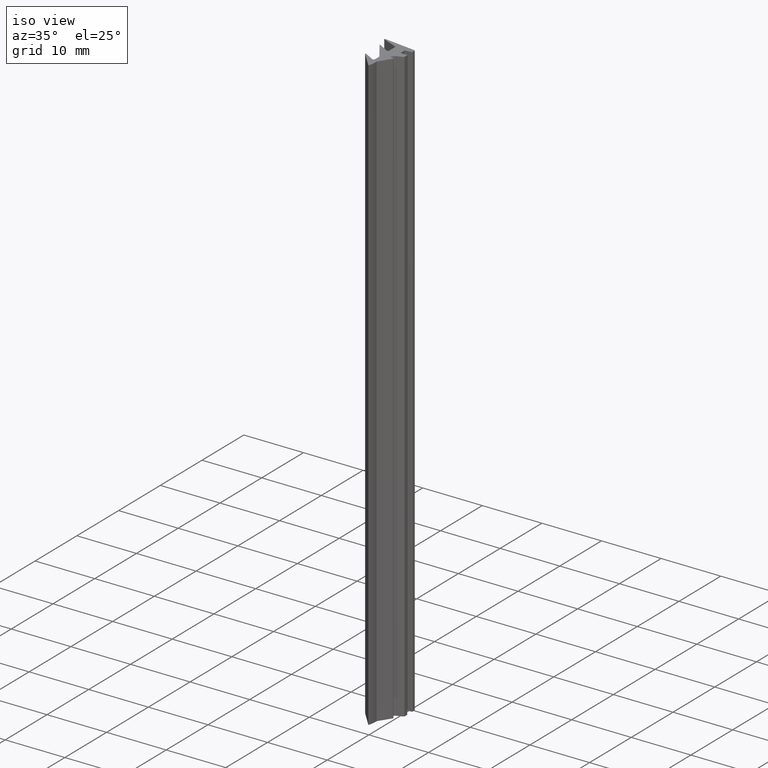
[diagram: clean part render]
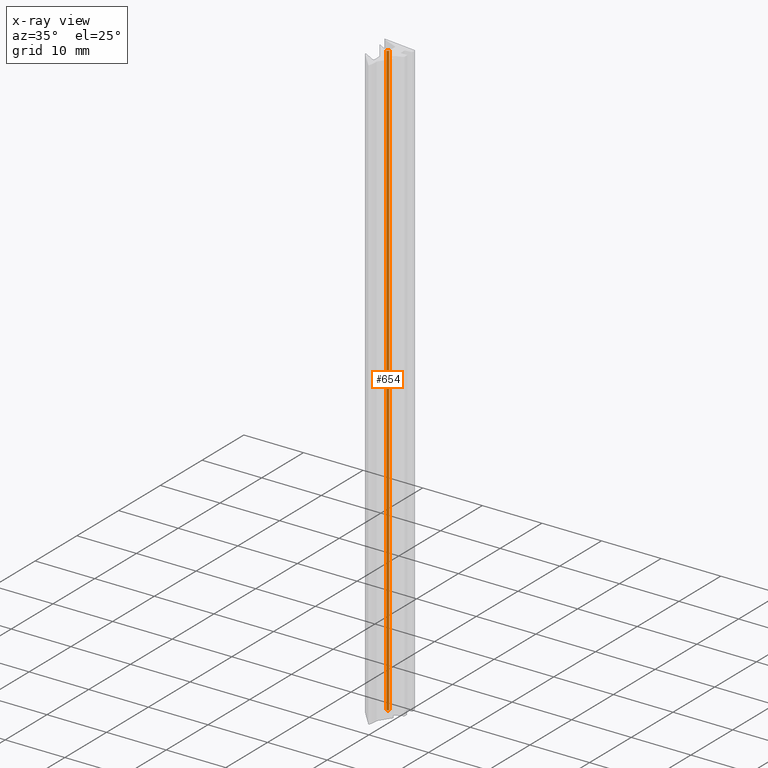
[diagram: x-ray — body ghosted, one internal face saturated and labeled with its STEP entity id]
A machine part, iso view, then the same camera in x-ray: the body is ghosted and one INTERNAL B-rep face — a face not visible from any outside direction — is saturated and labeled: STEP entity #654.
In plain terms, the highlighted cylindrical surface (edge-blend (fillet) strip) has radius 0.2133 mm, axis along (0, 0, -1).
Its self-contained STEP definition (entity closure, byte-faithful):
#596=CARTESIAN_POINT('',(-0.455316515005507,5.517455236282331,0.0));
#597=VERTEX_POINT('',#596);
#604=CARTESIAN_POINT('',(-0.455316515005507,5.517455236282331,100.0));
#605=VERTEX_POINT('',#604);
#606=CARTESIAN_POINT('',(-0.455316515005507,5.517455236282331,0.0));
#607=DIRECTION('',(0.0,0.0,1.0));
#608=VECTOR('',#607,100.0);
#609=LINE('',#606,#608);
#610=EDGE_CURVE('',#597,#605,#609,.T.);
#622=CARTESIAN_POINT('',(-0.668616515004487,5.517455236282331,0.0));
#623=DIRECTION('',(0.0,0.0,-1.0));
#624=DIRECTION('',(1.0,0.0,0.0));
#625=AXIS2_PLACEMENT_3D('',#622,#623,#624);
#626=CYLINDRICAL_SURFACE('',#625,0.213299999999146);
#627=CARTESIAN_POINT('',(-0.775266515004205,5.332732017655872,0.0));
#628=VERTEX_POINT('',#627);
#629=CARTESIAN_POINT('',(-0.668616515004487,5.517455236282331,0.0));
#630=DIRECTION('',(0.0,0.0,-1.0));
#631=DIRECTION('',(1.0,0.0,0.0));
#632=AXIS2_PLACEMENT_3D('',#629,#630,#631);
#633=CIRCLE('',#632,0.213299999999146);
#634=EDGE_CURVE('',#597,#628,#633,.T.);
#635=ORIENTED_EDGE('',*,*,#634,.T.);
#636=CARTESIAN_POINT('',(-0.775266515004205,5.332732017655872,100.0));
#637=VERTEX_POINT('',#636);
#638=CARTESIAN_POINT('',(-0.775266515004205,5.332732017655872,0.0));
#639=DIRECTION('',(0.0,0.0,1.0));
#640=VECTOR('',#639,100.0);
#641=LINE('',#638,#640);
#642=EDGE_CURVE('',#628,#637,#641,.T.);
#643=ORIENTED_EDGE('',*,*,#642,.T.);
#644=CARTESIAN_POINT('',(-0.668616515004487,5.517455236282331,100.0));
#645=DIRECTION('',(0.0,0.0,-1.0));
#646=DIRECTION('',(1.0,0.0,0.0));
#647=AXIS2_PLACEMENT_3D('',#644,#645,#646);
#648=CIRCLE('',#647,0.213299999999146);
#649=EDGE_CURVE('',#605,#637,#648,.T.);
#650=ORIENTED_EDGE('',*,*,#649,.F.);
#651=ORIENTED_EDGE('',*,*,#610,.F.);
#652=EDGE_LOOP('',(#635,#643,#650,#651));
#653=FACE_OUTER_BOUND('',#652,.T.);
#654=ADVANCED_FACE('',(#653),#626,.F.);